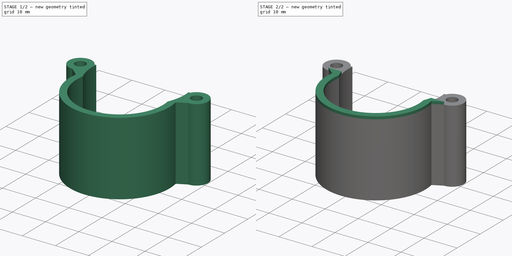
[diagram: build sequence overview — one tinted view per stage of 2, left to right]
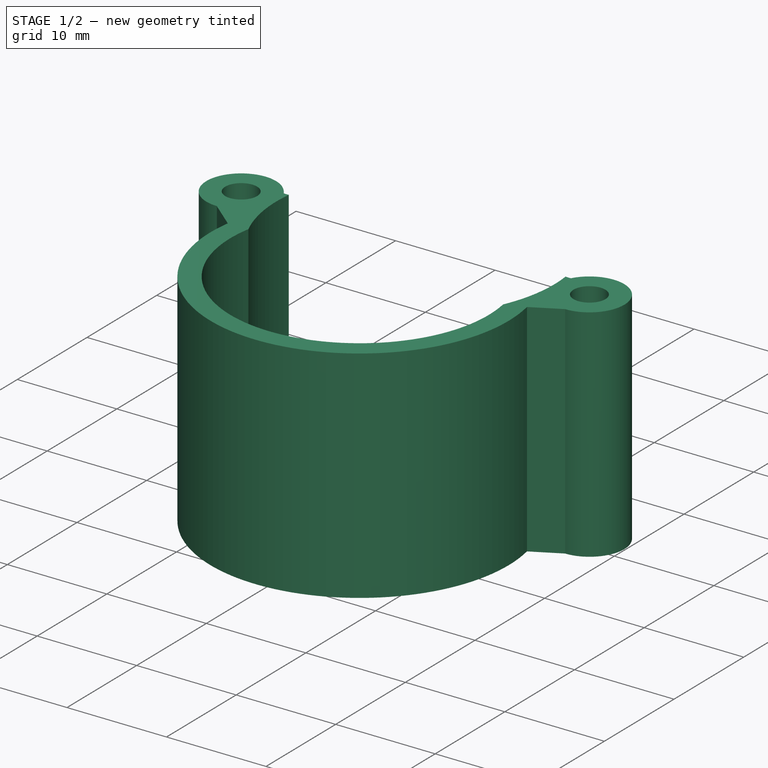
[diagram: stage 1 of 2 — iso view after this stage's code; geometry added in this stage tinted green]
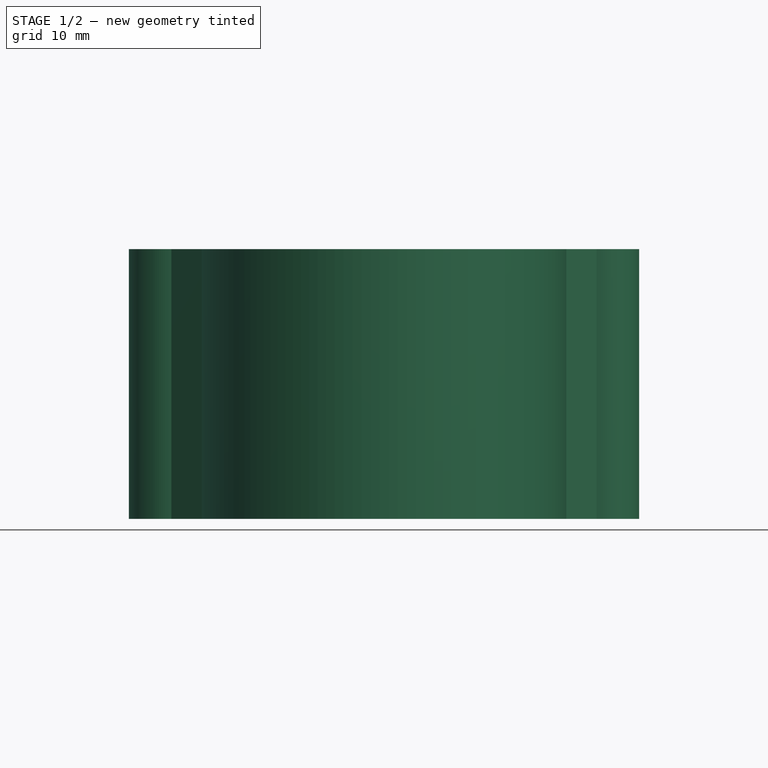
[diagram: stage 1 of 2 — front view after this stage's code; geometry added in this stage tinted green]
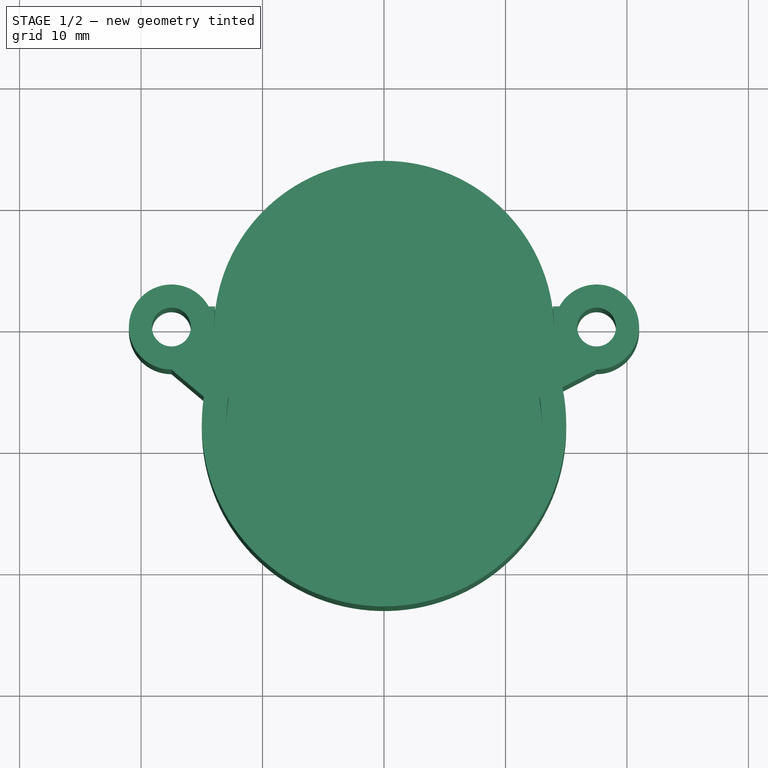
[diagram: stage 1 of 2 — top view after this stage's code; geometry added in this stage tinted green]
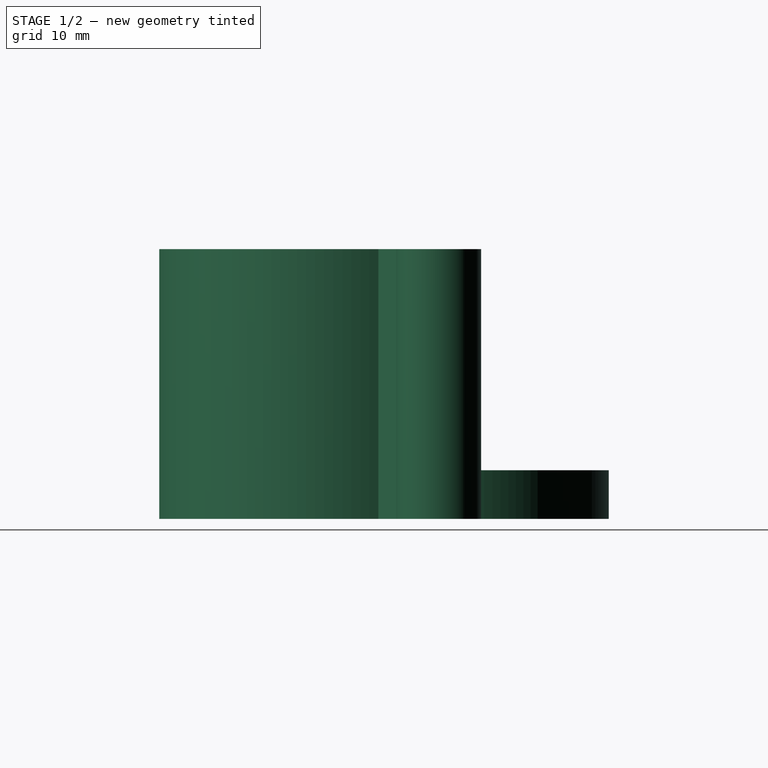
[diagram: stage 1 of 2 — right view after this stage's code; geometry added in this stage tinted green]
FCSTD DOCUMENT  (FreeCAD 0.18.3R)
Label: Cover
License: All rights reserved
LicenseURL: http://en.wikipedia.org/wiki/All_rights_reserved
objects: Sketcher::SketchObject×3, PartDesign::Pad×3, PartDesign::Body×1
note: 10 computed .brp shape members not serialized (recipe doc carries the construction recipe); baked Part::Feature solids carry a one-line shape summary decoded from their .brp

FEATURE [Sketcher::SketchObject] Sketch
  MapMode = 5
  Support = -> [XY_Plane]
  sketch-geometry (26):
    g0: Circle [constr] CenterX=0 CenterY=0 CenterZ=0 NormalX=0 NormalY=0 NormalZ=1 AngleXU=0 Radius=14
    g1: LineSegment [constr] StartX=0 StartY=0 StartZ=0 EndX=0 EndY=-8 EndZ=0
    g2: Circle [constr] CenterX=0 CenterY=-8 CenterZ=0 NormalX=0 NormalY=0 NormalZ=1 AngleXU=0 Radius=15
    g3: LineSegment [constr] StartX=0 StartY=0 StartZ=0 EndX=-17.5 EndY=0 EndZ=0
    g4: LineSegment [constr] StartX=0 StartY=0 StartZ=0 EndX=17.5 EndY=0 EndZ=0
    g5: Circle [constr] CenterX=0 CenterY=-8 CenterZ=0 NormalX=0 NormalY=0 NormalZ=1 AngleXU=0 Radius=13
    g6: Circle CenterX=-17.5 CenterY=0 CenterZ=0 NormalX=0 NormalY=0 NormalZ=1 AngleXU=0 Radius=1.6
    g7: Circle CenterX=17.5 CenterY=0 CenterZ=0 NormalX=0 NormalY=0 NormalZ=1 AngleXU=0 Radius=1.6
    g8: Circle [constr] CenterX=-17.5 CenterY=0 CenterZ=0 NormalX=0 NormalY=0 NormalZ=1 AngleXU=0 Radius=3.5
    g9: LineSegment [constr] StartX=-17.5 StartY=0 StartZ=0 EndX=-17.5 EndY=-3.5 EndZ=0
    g10: LineSegment [constr] StartX=-17.5 StartY=0 StartZ=0 EndX=-14.4335 EndY=1.68723 EndZ=0
    g11: LineSegment [constr] StartX=-17.5 StartY=-3.5 StartZ=0 EndX=-14.829 EndY=-5.74127 EndZ=0
    g12: LineSegment [constr] StartX=-14.4335 StartY=1.68723 StartZ=0 EndX=-13.898 EndY=1.68723 EndZ=0
    g13: Circle [constr] CenterX=17.5 CenterY=0 CenterZ=0 NormalX=0 NormalY=0 NormalZ=1 AngleXU=0 Radius=3.5
    g14: LineSegment [constr] StartX=17.5 StartY=0 StartZ=0 EndX=14.4399 EndY=1.69883 EndZ=0
    g15: LineSegment [constr] StartX=17.5 StartY=0 StartZ=0 EndX=17.5 EndY=-3.5 EndZ=0
    g16: LineSegment [constr] StartX=17.5 StartY=-3.5 StartZ=0 EndX=14.6885 EndY=-4.95911 EndZ=0
    g17: LineSegment [constr] StartX=14.4399 StartY=1.69883 StartZ=0 EndX=13.8965 EndY=1.69883 EndZ=0
    g18: ArcOfCircle CenterX=-17.5 CenterY=0 CenterZ=0 NormalX=0 NormalY=0 NormalZ=1 AngleXU=0 Radius=3.5 StartAngle=0.503012 EndAngle=4.71239
    g19: ArcOfCircle CenterX=17.5 CenterY=0 CenterZ=0 NormalX=0 NormalY=0 NormalZ=1 AngleXU=0 Radius=3.5 StartAngle=4.71239 EndAngle=8.91798
    g20: ArcOfCircle CenterX=0 CenterY=0 CenterZ=0 NormalX=0 NormalY=0 NormalZ=1 AngleXU=0 Radius=14 StartAngle=0.121644 EndAngle=3.02078
    g21: ArcOfCircle CenterX=0 CenterY=-8 CenterZ=0 NormalX=0 NormalY=0 NormalZ=1 AngleXU=0 Radius=15 StartAngle=2.99044 EndAngle=6.48733
    g22: LineSegment StartX=-17.5 StartY=-3.5 StartZ=0 EndX=-14.829 EndY=-5.74127 EndZ=0
    g23: LineSegment StartX=-14.4335 StartY=1.68723 StartZ=0 EndX=-13.898 EndY=1.68723 EndZ=0
    g24: LineSegment StartX=13.8965 StartY=1.69883 StartZ=0 EndX=14.4399 EndY=1.69883 EndZ=0
    g25: LineSegment StartX=14.6885 StartY=-4.95911 StartZ=0 EndX=17.5 EndY=-3.5 EndZ=0
  constraints (60):
    c: Coincident(g0,g-1)
    c: Radius(g0) = 14
    c: Coincident(g1,g-1)
    c: PointOnObject(g1,g-2)
    c: Coincident(g2,g1)
    c: Distance(g1) = 8
    c: Radius(g2) = 15
    c: Coincident(g3,g-1)
    c: PointOnObject(g3,g-1)
    c: Coincident(g4,g-1)
    c: PointOnObject(g4,g-1)
    c: Distance(g3) = 17.5
    c: Distance(g4) = 17.5
    c: Coincident(g5,g1)
    c: Radius(g5) = 13
    c: Coincident(g6,g3)
    c: Radius(g6) = 1.6
    c: Coincident(g7,g4)
    c: Radius(g7) = 1.6
    c: Coincident(g8,g6)
    c: Radius(g8) = 3.5
    c: Coincident(g9,g6)
    c: PointOnObject(g9,g8)
    c: Vertical(g9)
    c: Coincident(g10,g6)
    c: Coincident(g11,g9)
    c: Angle(g11,g9) = 2.26893
    c: PointOnObject(g11,g2)
    c: Coincident(g12,g10)
    c: PointOnObject(g12,g0)
    c: Parallel(g3,g12)
    c: Coincident(g13,g7)
    c: Radius(g13) = 3.5
    c: Coincident(g14,g7)
    c: PointOnObject(g14,g13)
    c: Coincident(g15,g7)
    c: Vertical(g15)
    c: Coincident(g16,g15)
    c: Coincident(g17,g14)
    c: Horizontal(g17)
    c: Coincident(g18,g6)
    c: Coincident(g18,g9)
    c: Coincident(g18,g10)
    c: Coincident(g19,g7)
    c: Coincident(g19,g14)
    c: Coincident(g19,g15)
    c: Coincident(g20,g-1)
    c: Coincident(g20,g12)
    c: Coincident(g20,g17)
    c: Coincident(g21,g1)
    c: Coincident(g21,g16)
    c: Coincident(g21,g11)
    c: Coincident(g22,g18)
    c: Coincident(g22,g21)
    c: Coincident(g23,g18)
    c: Coincident(g23,g20)
    c: Coincident(g24,g20)
    c: Coincident(g24,g19)
    c: Coincident(g25,g21)
    c: Coincident(g25,g19)
FEATURE [PartDesign::Pad] Pad
  Length = 4
  Length2 = 100
  Profile = -> Sketch
  Type = 0
FEATURE [Sketcher::SketchObject] Sketch002
  ExternalGeometry = -> [Pad]
  MapMode = 5
  Placement = pos=(0,0,4) rot=(0,0,1;0rad)
  Support = -> [Pad]
  sketch-geometry (19):
    g0: Circle [constr] CenterX=0 CenterY=0 CenterZ=0 NormalX=0 NormalY=0 NormalZ=1 AngleXU=0 Radius=14
    g1: LineSegment [constr] StartX=0 StartY=0 StartZ=0 EndX=0 EndY=-8 EndZ=0
    g2: Circle [constr] CenterX=0 CenterY=-8 CenterZ=0 NormalX=0 NormalY=0 NormalZ=1 AngleXU=0 Radius=13
    g3: Circle CenterX=-17.5 CenterY=-2e-16 CenterZ=0 NormalX=0 NormalY=0 NormalZ=1 AngleXU=0 Radius=1.6
    g4: Circle CenterX=17.5 CenterY=2e-16 CenterZ=0 NormalX=0 NormalY=0 NormalZ=1 AngleXU=0 Radius=1.6
    g5: LineSegment [constr] StartX=-14.4335 StartY=1.68723 StartZ=0 EndX=-13.898 EndY=1.68723 EndZ=0
    g6: ArcOfCircle CenterX=-17.5 CenterY=-2e-16 CenterZ=0 NormalX=0 NormalY=0 NormalZ=1 AngleXU=0 Radius=3.5 StartAngle=0.503012 EndAngle=4.71239
    g7: LineSegment StartX=-17.5 StartY=-3.5 StartZ=0 EndX=-14.829 EndY=-5.74127 EndZ=0
    g8: LineSegment [constr] StartX=13.8965 StartY=1.69883 StartZ=0 EndX=14.4399 EndY=1.69883 EndZ=0
    g9: GeomPoint X=-12.7927 Y=-5.6875 Z=0
    g10: GeomPoint X=12.7927 Y=-5.6875 Z=0
    g11: ArcOfCircle CenterX=0 CenterY=-8 CenterZ=0 NormalX=0 NormalY=0 NormalZ=1 AngleXU=0 Radius=15 StartAngle=2.99044 EndAngle=6.48733
    g12: LineSegment StartX=14.6885 StartY=-4.95911 StartZ=0 EndX=17.5 EndY=-3.5 EndZ=0
    g13: ArcOfCircle CenterX=17.5 CenterY=2e-16 CenterZ=0 NormalX=0 NormalY=0 NormalZ=1 AngleXU=0 Radius=3.5 StartAngle=4.71239 EndAngle=8.91798
    g14: ArcOfCircle CenterX=0 CenterY=-8 CenterZ=0 NormalX=0 NormalY=0 NormalZ=1 AngleXU=0 Radius=13 StartAngle=2.96276 EndAngle=6.46202
    g15: ArcOfCircle CenterX=0 CenterY=0 CenterZ=0 NormalX=0 NormalY=0 NormalZ=1 AngleXU=0 Radius=14 StartAngle=5.86484 EndAngle=6.40483
    g16: LineSegment StartX=13.8965 StartY=1.69883 StartZ=0 EndX=14.4399 EndY=1.69883 EndZ=0
    g17: ArcOfCircle CenterX=0 CenterY=0 CenterZ=0 NormalX=0 NormalY=0 NormalZ=1 AngleXU=0 Radius=14 StartAngle=3.02078 EndAngle=3.55994
    g18: LineSegment StartX=-14.4335 StartY=1.68723 StartZ=0 EndX=-13.898 EndY=1.68723 EndZ=0
  constraints (43):
    c: Coincident(g0,g-1)
    c: Vertical(g1)
    c: Coincident(g2,g1)
    c: Coincident(g5,g-10)
    c: Coincident(g6,g3)
    c: Coincident(g6,g5)
    c: Coincident(g6,g-5)
    c: Coincident(g7,g6)
    c: Coincident(g7,g-5)
    c: Coincident(g8,g-7)
    c: PointOnObject(g9,g2)
    c: Radius(g0) = 14
    c: Radius(g2) = 13
    c: Coincident(g1,g-1)
    c: PointOnObject(g10,g0)
    c: PointOnObject(g9,g0)
    c: Coincident(g11,g1)
    c: Coincident(g11,g7)
    c: Coincident(g11,g-6)
    c: Coincident(g12,g11)
    c: Coincident(g12,g-6)
    c: Coincident(g13,g4)
    c: Coincident(g13,g12)
    c: Coincident(g13,g8)
    c: Coincident(g14,g11)
    c: Coincident(g14,g10)
    c: Coincident(g14,g9)
    c: Radius(g6) = 3.5
    c: Radius(g4) = 1.6
    c: Radius(g13) = 3.5
    c: Radius(g3) = 1.6
    c: Coincident(g15,g-1)
    c: Coincident(g15,g8)
    c: Coincident(g15,g10)
    c: Coincident(g16,g15)
    c: Coincident(g16,g13)
    c: Horizontal(g16)
    c: Coincident(g17,g15)
    c: Coincident(g17,g9)
    c: Coincident(g17,g5)
    c: Coincident(g18,g6)
    c: Coincident(g18,g17)
    c: Horizontal(g18)
FEATURE [PartDesign::Pad] Pad001
  BaseFeature = -> Pad
  Length = 18.2
  Length2 = 100
  Profile = -> Sketch002
  Type = 0
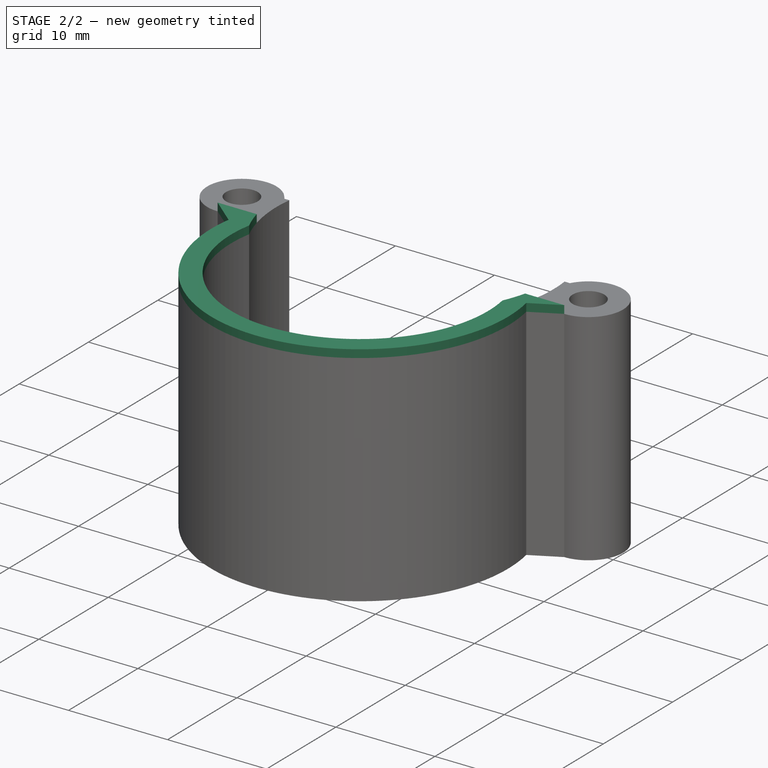
[diagram: stage 2 of 2 — iso view after this stage's code; geometry added in this stage tinted green]
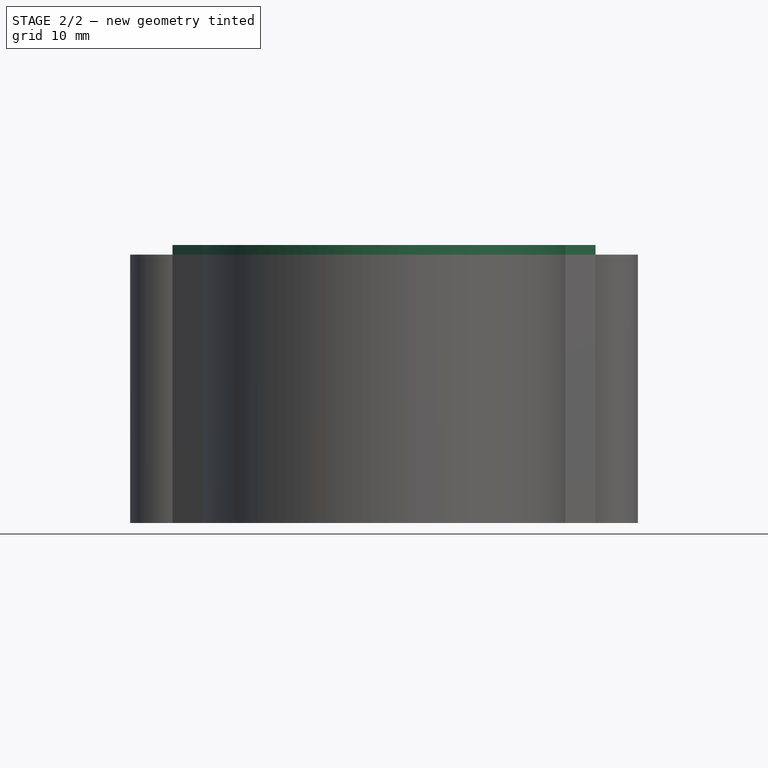
[diagram: stage 2 of 2 — front view after this stage's code; geometry added in this stage tinted green]
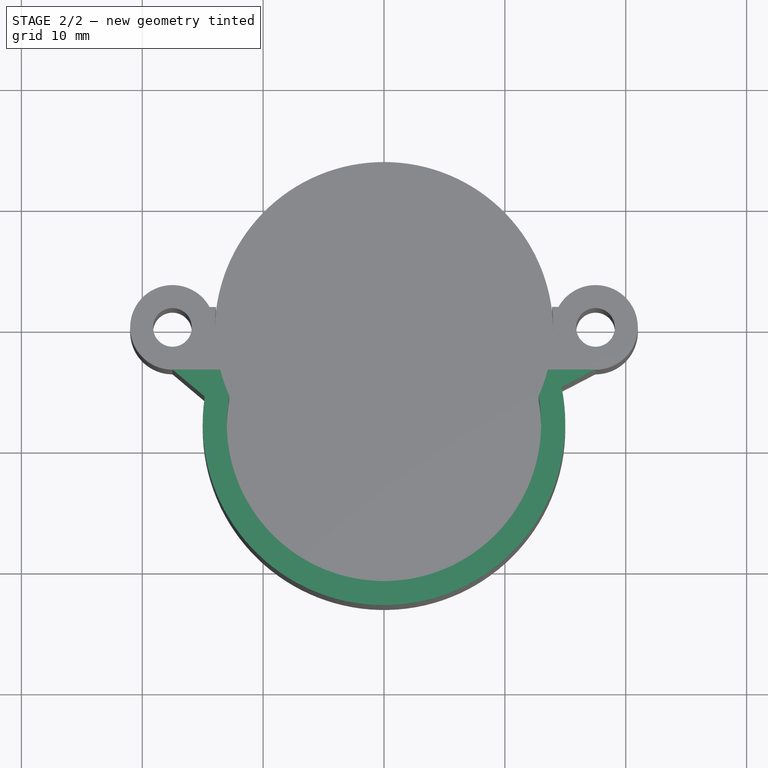
[diagram: stage 2 of 2 — top view after this stage's code; geometry added in this stage tinted green]
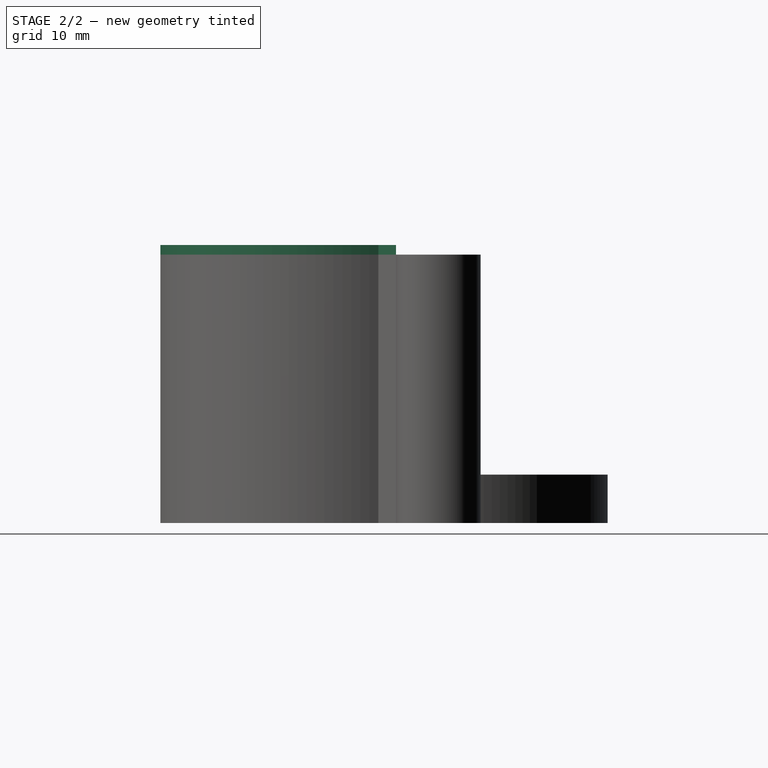
[diagram: stage 2 of 2 — right view after this stage's code; geometry added in this stage tinted green]
FEATURE [Sketcher::SketchObject] Sketch003
  ExternalGeometry = -> [Pad001]
  MapMode = 5
  Placement = pos=(0,0,22.2) rot=(0,0,1;0rad)
  Support = -> [Pad001]
  sketch-geometry (9):
    g0: LineSegment StartX=-17.5 StartY=-3.5 StartZ=0 EndX=-13.5554 EndY=-3.5 EndZ=0
    g1: LineSegment StartX=17.5 StartY=-3.5 StartZ=0 EndX=13.5554 EndY=-3.5 EndZ=0
    g2: LineSegment StartX=-17.5 StartY=-3.5 StartZ=0 EndX=-14.829 EndY=-5.74127 EndZ=0
    g3: LineSegment StartX=17.5 StartY=-3.5 StartZ=0 EndX=14.6885 EndY=-4.95911 EndZ=0
    g4: LineSegment [constr] StartX=0 StartY=0 StartZ=0 EndX=7e-16 EndY=-8 EndZ=0
    g5: ArcOfCircle CenterX=7e-16 CenterY=-8 CenterZ=0 NormalX=0 NormalY=0 NormalZ=1 AngleXU=0 Radius=13 StartAngle=2.96276 EndAngle=6.46202
    g6: ArcOfCircle CenterX=7e-16 CenterY=-8 CenterZ=0 NormalX=0 NormalY=0 NormalZ=1 AngleXU=0 Radius=15 StartAngle=2.99044 EndAngle=6.48733
    g7: ArcOfCircle CenterX=0 CenterY=0 CenterZ=0 NormalX=0 NormalY=0 NormalZ=1 AngleXU=0 Radius=14 StartAngle=3.39427 EndAngle=3.55994
    g8: ArcOfCircle CenterX=0 CenterY=0 CenterZ=0 NormalX=0 NormalY=0 NormalZ=1 AngleXU=0 Radius=14 StartAngle=5.86484 EndAngle=6.03051
  constraints (21):
    c: Coincident(g0,g-4)
    c: Horizontal(g0)
    c: Coincident(g1,g-6)
    c: Horizontal(g1)
    c: Coincident(g2,g0)
    c: Coincident(g2,g-4)
    c: Coincident(g3,g1)
    c: Coincident(g3,g-5)
    c: Coincident(g4,g-1)
    c: Coincident(g5,g4)
    c: Coincident(g5,g-7)
    c: Coincident(g5,g-8)
    c: Coincident(g6,g5)
    c: Coincident(g6,g2)
    c: Coincident(g6,g3)
    c: Coincident(g7,g-1)
    c: Coincident(g7,g0)
    c: Coincident(g7,g5)
    c: Coincident(g8,g7)
    c: Coincident(g8,g1)
    c: Coincident(g8,g5)
FEATURE [PartDesign::Pad] Pad002
  BaseFeature = -> Pad001
  Length = 0.8
  Length2 = 100
  Profile = -> Sketch003
  Type = 0
FEATURE [PartDesign::Body] Body
  Group = -> [Sketch,Pad,Sketch002,Pad001,Sketch003,Pad002]
  Origin = -> Origin
  Tip = -> Pad002
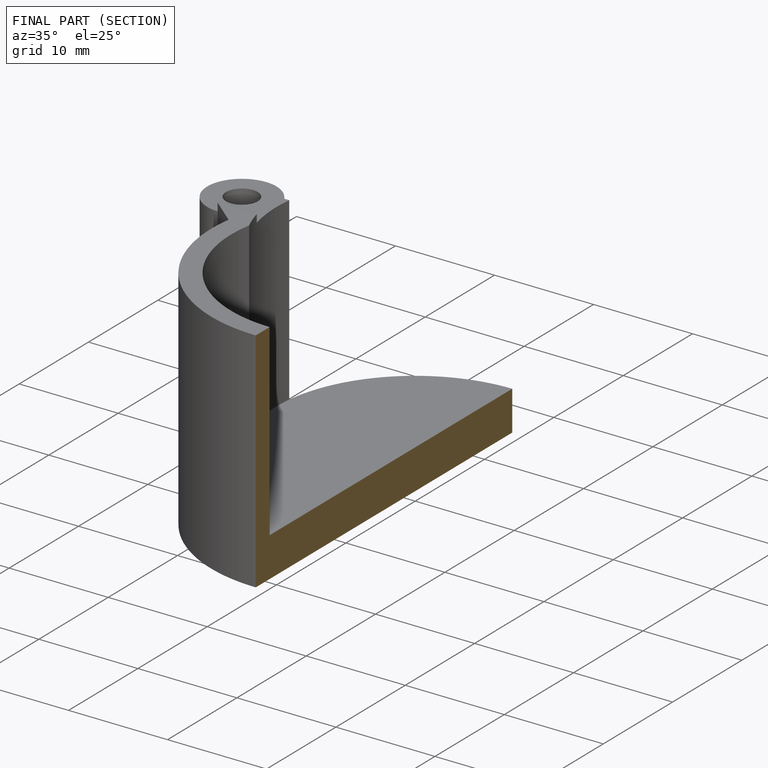
[diagram: finished part — half-section view (interior)]
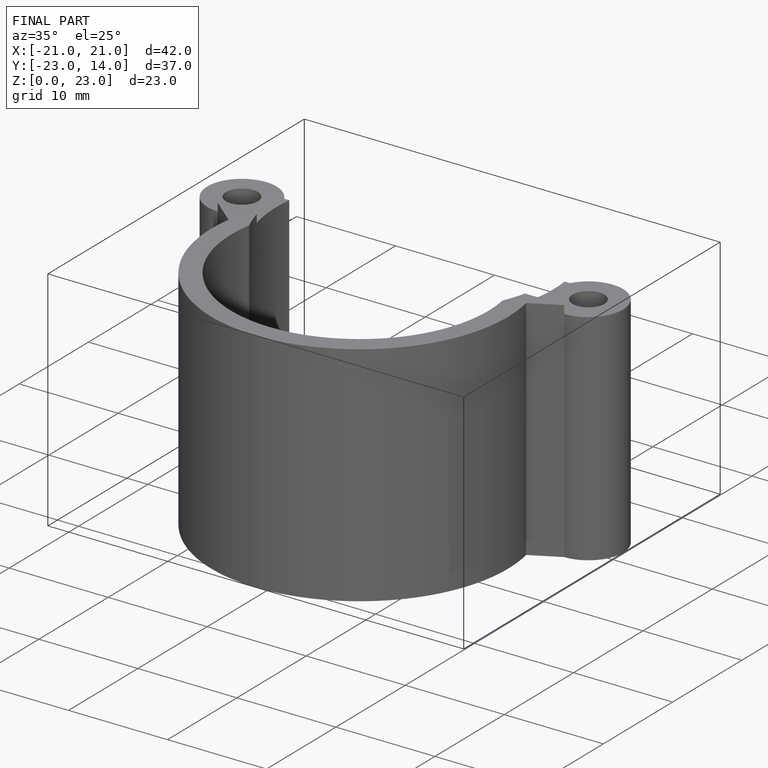
[diagram: finished part — iso view with bounding-box wireframe]
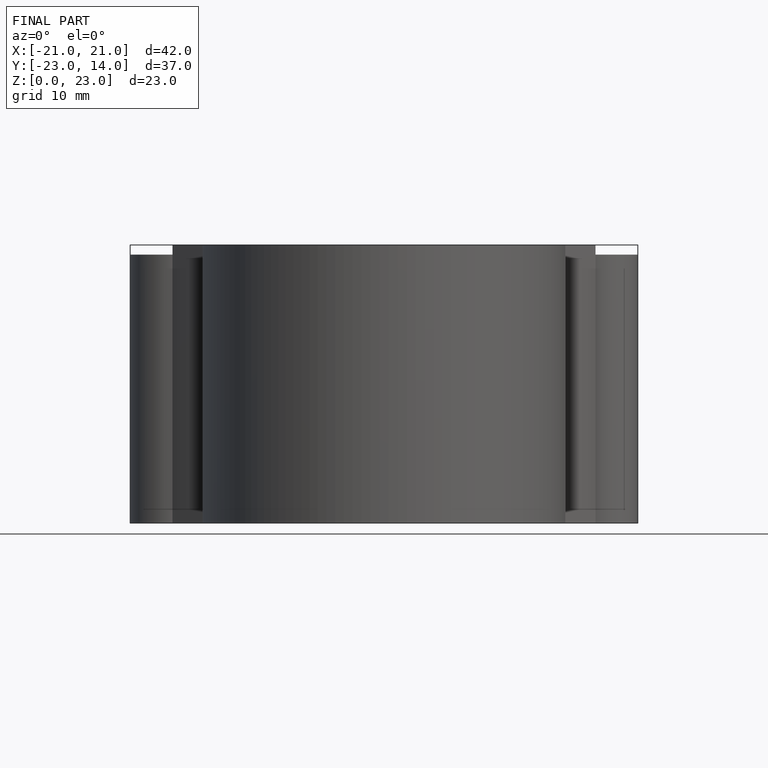
[diagram: finished part — front view with bounding-box wireframe]
